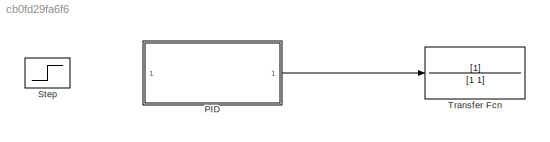
MODEL slx_cb0fd29fa6f6
KIND model
CONFIG AbsTol = auto
CONFIG EnableMultiTasking = off
CONFIG FixedStep = auto
CONFIG MaxStep = auto
CONFIG MinStep = auto
CONFIG RelTol = 1e-3
CONFIG SampleTimeConstraint = Unconstrained
CONFIG SolverName = VariableStepAuto
CONFIG StartTime = 0.0
CONFIG StopTime = 10.0
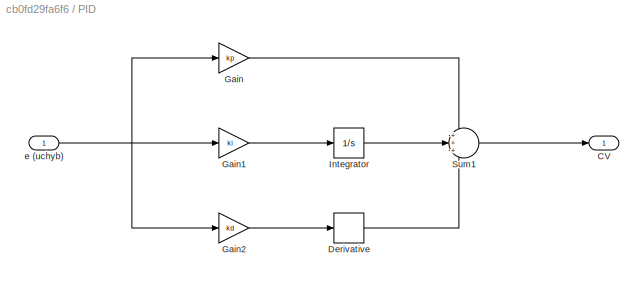
BLOCK [SubSystem] PID
BLOCK [Outport] PID/CV
BLOCK [Derivative] PID/Derivative
BLOCK [Gain] PID/Gain
  Gain = kp
BLOCK [Gain] PID/Gain1
  Gain = ki
BLOCK [Gain] PID/Gain2
  Gain = kd
BLOCK [Integrator] PID/Integrator
BLOCK [Sum] PID/Sum1
  Inputs = +++
BLOCK [Inport] PID/e (uchyb)
BLOCK [Step] Step
  SampleTime = 0
BLOCK [TransferFcn] Transfer Fcn
  Denominator = [1 1]
LINE PID/Derivative:1 -> PID/Sum1:3
LINE PID/Gain1:1 -> PID/Integrator:1
LINE PID/Gain2:1 -> PID/Derivative:1
LINE PID/Gain:1 -> PID/Sum1:1
LINE PID/Integrator:1 -> PID/Sum1:2
LINE PID/Sum1:1 -> PID/CV:1
NET PID/e (uchyb):1 -> PID/Gain1:1, PID/Gain2:1, PID/Gain:1
LINE PID:1 -> Transfer Fcn:1
note: NET lines group one-source signal fan-out (src -> all destinations, sorted); 1:1 wires keep LINE
